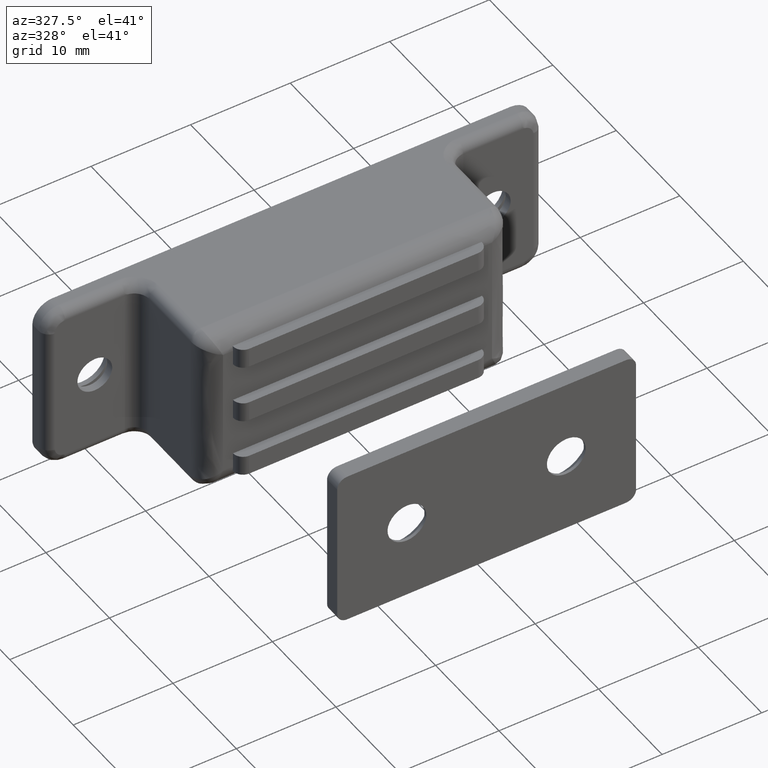
[diagram: clean part render]
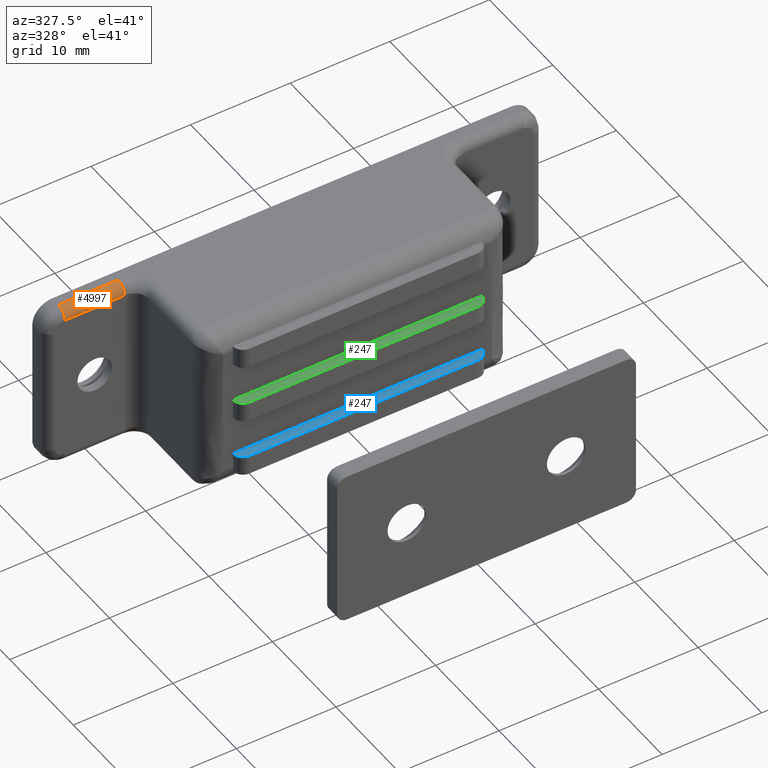
[diagram: same view with three faces highlighted in distinct colors, each labeled with its STEP entity id]
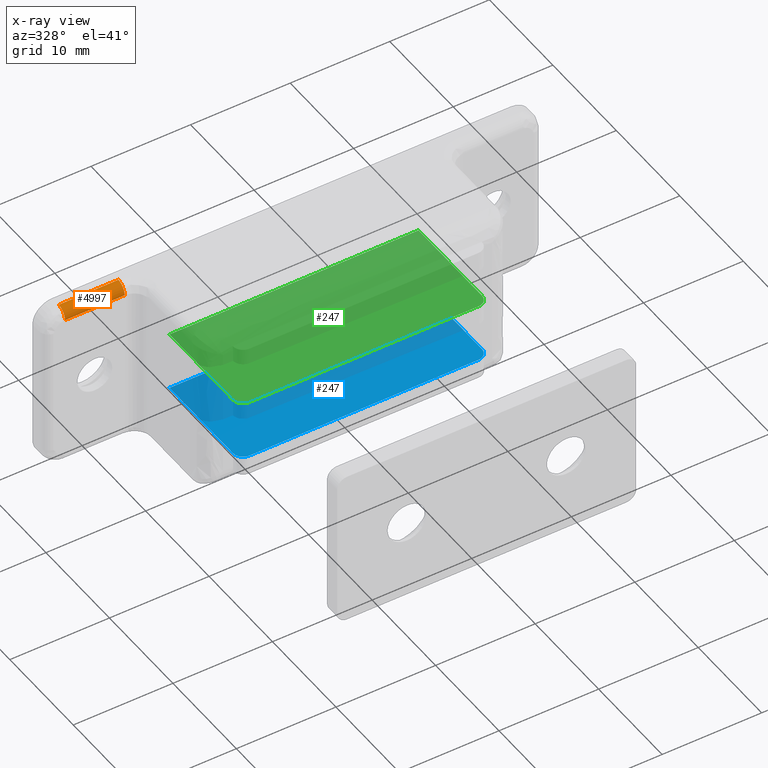
[diagram: x-ray of the same camera — body ghosted, the three highlighted faces saturated]
A machine part, auxiliary view with three faces highlighted in distinct colors.
The next image is the same camera in x-ray (body ghosted, the three faces saturated) — at least one of them is partly hidden behind the body in this view.
Their STEP definitions:

[orange] entity #4997 — the highlighted face is a freeform B-spline surface patch.
#4906=CARTESIAN_POINT('',(-17.000004000000001,-1.0,8.500000000000000));
#4907=VERTEX_POINT('',#4906);
#4908=CARTESIAN_POINT('',(-17.000004000000001,-2.0,7.500000000000000));
#4909=VERTEX_POINT('',#4908);
#4910=CARTESIAN_POINT('',(-17.000004000000001,-1.0,8.500000000000000));
#4911=CARTESIAN_POINT('',(-17.000003999999993,-2.000000000000000,8.500000000000002));
#4912=CARTESIAN_POINT('',(-17.000004000000001,-2.0,7.500000000000000));
#4920=(BOUNDED_CURVE()B_SPLINE_CURVE(2,(#4910,#4911,#4912),.UNSPECIFIED.,.F.,.U.)CURVE()GEOMETRIC_REPRESENTATION_ITEM()QUASI_UNIFORM_CURVE()RATIONAL_B_SPLINE_CURVE((1.0,0.707106781186548,1.0))REPRESENTATION_ITEM(''));
#4921=EDGE_CURVE('',#4907,#4909,#4920,.T.);
#4953=CARTESIAN_POINT('',(-16.850003999999998,-0.973823051692127,8.499657324975557));
#4954=CARTESIAN_POINT('',(-23.153754000000010,-0.973823051692127,8.499657324975557));
#4955=CARTESIAN_POINT('',(-16.850004000000002,-2.074984800554719,8.528492260166260));
#4956=CARTESIAN_POINT('',(-23.153753999999999,-2.074984800554719,8.528492260166260));
#4957=CARTESIAN_POINT('',(-16.850004000000002,-1.997524479380809,7.429679924374018));
#4958=CARTESIAN_POINT('',(-23.153754000000010,-1.997524479380809,7.429679924374018));
#4966=(BOUNDED_SURFACE()B_SPLINE_SURFACE(1,2,((#4953,#4955,#4957),(#4954,#4956,#4958)),.UNSPECIFIED.,.F.,.F.,.U.)B_SPLINE_SURFACE_WITH_KNOTS((2,2),(3,3),(0.0,6.303750000000008),(0.0,0.994518632334191),.UNSPECIFIED.)GEOMETRIC_REPRESENTATION_ITEM()RATIONAL_B_SPLINE_SURFACE(((1.0,0.670944223154768,0.996392648609106),(1.0,0.670944223154768,0.996392648609106)))REPRESENTATION_ITEM('')SURFACE());
#4967=CARTESIAN_POINT('',(-23.000004000000001,-1.0,8.500000000000000));
#4968=VERTEX_POINT('',#4967);
#4969=CARTESIAN_POINT('',(-23.000004000000001,-2.0,7.500000000000000));
#4970=VERTEX_POINT('',#4969);
#4971=CARTESIAN_POINT('',(-23.000004000000001,-1.0,8.500000000000000));
#4972=CARTESIAN_POINT('',(-23.000004000000004,-2.000000000000000,8.500000000000002));
#4973=CARTESIAN_POINT('',(-23.000004000000001,-2.0,7.500000000000000));
#4981=(BOUNDED_CURVE()B_SPLINE_CURVE(2,(#4971,#4972,#4973),.UNSPECIFIED.,.F.,.U.)CURVE()GEOMETRIC_REPRESENTATION_ITEM()QUASI_UNIFORM_CURVE()RATIONAL_B_SPLINE_CURVE((1.0,0.707106781186548,1.0))REPRESENTATION_ITEM(''));
#4982=EDGE_CURVE('',#4968,#4970,#4981,.T.);
#4983=ORIENTED_EDGE('',*,*,#4982,.T.);
#4984=CARTESIAN_POINT('',(-17.000004000000001,-2.0,7.500000000000000));
#4985=CARTESIAN_POINT('',(-23.000004000000001,-2.0,7.500000000000000));
#4986=QUASI_UNIFORM_CURVE('',1,(#4984,#4985),.UNSPECIFIED.,.F.,.U.);
#4987=EDGE_CURVE('',#4909,#4970,#4986,.T.);
#4988=ORIENTED_EDGE('',*,*,#4987,.F.);
#4989=ORIENTED_EDGE('',*,*,#4921,.F.);
#4990=CARTESIAN_POINT('',(-23.000004000000001,-1.0,8.500000000000000));
#4991=CARTESIAN_POINT('',(-17.000004000000001,-1.0,8.500000000000000));
#4992=QUASI_UNIFORM_CURVE('',1,(#4990,#4991),.UNSPECIFIED.,.F.,.U.);
#4993=EDGE_CURVE('',#4968,#4907,#4992,.T.);
#4994=ORIENTED_EDGE('',*,*,#4993,.F.);
#4995=EDGE_LOOP('',(#4983,#4988,#4989,#4994));
#4996=FACE_OUTER_BOUND('',#4995,.T.);
#4997=ADVANCED_FACE('',(#4996),#4966,.T.);

[blue] entity #247 — the highlighted face is a freeform B-spline surface patch.
#77=CARTESIAN_POINT('',(-11.500003999999940,-13.0,7.0));
#78=VERTEX_POINT('',#77);
#84=CARTESIAN_POINT('',(-12.500003999999940,-12.0,7.0));
#85=VERTEX_POINT('',#84);
#86=CARTESIAN_POINT('',(-12.500003999999940,-12.0,7.0));
#87=CARTESIAN_POINT('',(-12.500003999999995,-12.414213562373115,7.000000000000001));
#88=CARTESIAN_POINT('',(-12.207110781186531,-12.707106781186569,7.0));
#89=CARTESIAN_POINT('',(-11.914217562373082,-13.000000000000005,7.000000000000001));
#90=CARTESIAN_POINT('',(-11.500003999999940,-13.0,7.0));
#98=(BOUNDED_CURVE()B_SPLINE_CURVE(2,(#86,#87,#88,#89,#90),.UNSPECIFIED.,.F.,.U.)B_SPLINE_CURVE_WITH_KNOTS((3,2,3),(0.0,0.500000000000000,1.0),.UNSPECIFIED.)CURVE()GEOMETRIC_REPRESENTATION_ITEM()RATIONAL_B_SPLINE_CURVE((1.0,0.923879532511281,1.0,0.923879532511281,1.0))REPRESENTATION_ITEM(''));
#99=EDGE_CURVE('',#85,#78,#98,.T.);
#140=CARTESIAN_POINT('',(12.500000000000000,-12.0,7.0));
#141=VERTEX_POINT('',#140);
#147=CARTESIAN_POINT('',(11.500000000000000,-13.0,7.0));
#148=VERTEX_POINT('',#147);
#149=CARTESIAN_POINT('',(11.500000000000000,-13.0,7.0));
#150=CARTESIAN_POINT('',(12.500000000000000,-13.000000000000004,6.999999999999999));
#151=CARTESIAN_POINT('',(12.500000000000000,-12.0,7.0));
#159=(BOUNDED_CURVE()B_SPLINE_CURVE(2,(#149,#150,#151),.UNSPECIFIED.,.F.,.U.)CURVE()GEOMETRIC_REPRESENTATION_ITEM()QUASI_UNIFORM_CURVE()RATIONAL_B_SPLINE_CURVE((1.0,0.707106781186548,1.0))REPRESENTATION_ITEM(''));
#160=EDGE_CURVE('',#148,#141,#159,.T.);
#175=CARTESIAN_POINT('',(12.500000000000000,-2.0,7.0));
#176=VERTEX_POINT('',#175);
#177=CARTESIAN_POINT('',(12.500000000000000,-12.0,7.0));
#178=CARTESIAN_POINT('',(12.500000000000000,-2.0,7.0));
#179=QUASI_UNIFORM_CURVE('',1,(#177,#178),.UNSPECIFIED.,.F.,.U.);
#180=EDGE_CURVE('',#141,#176,#179,.T.);
#211=CARTESIAN_POINT('',(-12.500003999999940,-2.0,7.0));
#212=VERTEX_POINT('',#211);
#213=CARTESIAN_POINT('',(-12.500003999999940,-12.0,7.0));
#214=CARTESIAN_POINT('',(-12.500003999999940,-2.0,7.0));
#215=QUASI_UNIFORM_CURVE('',1,(#213,#214),.UNSPECIFIED.,.F.,.U.);
#216=EDGE_CURVE('',#85,#212,#215,.T.);
#226=CARTESIAN_POINT('',(13.748750151345140,-13.549449978679871,7.0));
#227=CARTESIAN_POINT('',(-13.748754821897441,-13.549449978679871,7.0));
#228=CARTESIAN_POINT('',(13.748750151345140,-1.450549726277144,7.0));
#229=CARTESIAN_POINT('',(-13.748754821897441,-1.450549726277144,7.0));
#230=B_SPLINE_SURFACE_WITH_KNOTS('',1,1,((#226,#228),(#227,#229)),.UNSPECIFIED.,.F.,.F.,.U.,(2,2),(2,2),(0.0,27.497504973242581),(0.0,12.098900252402720),.UNSPECIFIED.);
#231=CARTESIAN_POINT('',(-11.500003999999940,-13.0,7.0));
#232=CARTESIAN_POINT('',(11.500000000000000,-13.0,7.0));
#233=QUASI_UNIFORM_CURVE('',1,(#231,#232),.UNSPECIFIED.,.F.,.U.);
#234=EDGE_CURVE('',#78,#148,#233,.T.);
#235=ORIENTED_EDGE('',*,*,#234,.T.);
#236=ORIENTED_EDGE('',*,*,#160,.T.);
#237=ORIENTED_EDGE('',*,*,#180,.T.);
#238=CARTESIAN_POINT('',(-12.500003999999940,-2.0,7.0));
#239=CARTESIAN_POINT('',(12.500000000000000,-2.0,7.0));
#240=QUASI_UNIFORM_CURVE('',1,(#238,#239),.UNSPECIFIED.,.F.,.U.);
#241=EDGE_CURVE('',#212,#176,#240,.T.);
#242=ORIENTED_EDGE('',*,*,#241,.F.);
#243=ORIENTED_EDGE('',*,*,#216,.F.);
#244=ORIENTED_EDGE('',*,*,#99,.T.);
#245=EDGE_LOOP('',(#235,#236,#237,#242,#243,#244));
#246=FACE_OUTER_BOUND('',#245,.T.);
#247=ADVANCED_FACE('',(#246),#230,.F.);

[green] entity #247 — the highlighted face is a freeform B-spline surface patch.
#77=CARTESIAN_POINT('',(-11.500003999999940,-13.0,7.0));
#78=VERTEX_POINT('',#77);
#84=CARTESIAN_POINT('',(-12.500003999999940,-12.0,7.0));
#85=VERTEX_POINT('',#84);
#86=CARTESIAN_POINT('',(-12.500003999999940,-12.0,7.0));
#87=CARTESIAN_POINT('',(-12.500003999999995,-12.414213562373115,7.000000000000001));
#88=CARTESIAN_POINT('',(-12.207110781186531,-12.707106781186569,7.0));
#89=CARTESIAN_POINT('',(-11.914217562373082,-13.000000000000005,7.000000000000001));
#90=CARTESIAN_POINT('',(-11.500003999999940,-13.0,7.0));
#98=(BOUNDED_CURVE()B_SPLINE_CURVE(2,(#86,#87,#88,#89,#90),.UNSPECIFIED.,.F.,.U.)B_SPLINE_CURVE_WITH_KNOTS((3,2,3),(0.0,0.500000000000000,1.0),.UNSPECIFIED.)CURVE()GEOMETRIC_REPRESENTATION_ITEM()RATIONAL_B_SPLINE_CURVE((1.0,0.923879532511281,1.0,0.923879532511281,1.0))REPRESENTATION_ITEM(''));
#99=EDGE_CURVE('',#85,#78,#98,.T.);
#140=CARTESIAN_POINT('',(12.500000000000000,-12.0,7.0));
#141=VERTEX_POINT('',#140);
#147=CARTESIAN_POINT('',(11.500000000000000,-13.0,7.0));
#148=VERTEX_POINT('',#147);
#149=CARTESIAN_POINT('',(11.500000000000000,-13.0,7.0));
#150=CARTESIAN_POINT('',(12.500000000000000,-13.000000000000004,6.999999999999999));
#151=CARTESIAN_POINT('',(12.500000000000000,-12.0,7.0));
#159=(BOUNDED_CURVE()B_SPLINE_CURVE(2,(#149,#150,#151),.UNSPECIFIED.,.F.,.U.)CURVE()GEOMETRIC_REPRESENTATION_ITEM()QUASI_UNIFORM_CURVE()RATIONAL_B_SPLINE_CURVE((1.0,0.707106781186548,1.0))REPRESENTATION_ITEM(''));
#160=EDGE_CURVE('',#148,#141,#159,.T.);
#175=CARTESIAN_POINT('',(12.500000000000000,-2.0,7.0));
#176=VERTEX_POINT('',#175);
#177=CARTESIAN_POINT('',(12.500000000000000,-12.0,7.0));
#178=CARTESIAN_POINT('',(12.500000000000000,-2.0,7.0));
#179=QUASI_UNIFORM_CURVE('',1,(#177,#178),.UNSPECIFIED.,.F.,.U.);
#180=EDGE_CURVE('',#141,#176,#179,.T.);
#211=CARTESIAN_POINT('',(-12.500003999999940,-2.0,7.0));
#212=VERTEX_POINT('',#211);
#213=CARTESIAN_POINT('',(-12.500003999999940,-12.0,7.0));
#214=CARTESIAN_POINT('',(-12.500003999999940,-2.0,7.0));
#215=QUASI_UNIFORM_CURVE('',1,(#213,#214),.UNSPECIFIED.,.F.,.U.);
#216=EDGE_CURVE('',#85,#212,#215,.T.);
#226=CARTESIAN_POINT('',(13.748750151345140,-13.549449978679871,7.0));
#227=CARTESIAN_POINT('',(-13.748754821897441,-13.549449978679871,7.0));
#228=CARTESIAN_POINT('',(13.748750151345140,-1.450549726277144,7.0));
#229=CARTESIAN_POINT('',(-13.748754821897441,-1.450549726277144,7.0));
#230=B_SPLINE_SURFACE_WITH_KNOTS('',1,1,((#226,#228),(#227,#229)),.UNSPECIFIED.,.F.,.F.,.U.,(2,2),(2,2),(0.0,27.497504973242581),(0.0,12.098900252402720),.UNSPECIFIED.);
#231=CARTESIAN_POINT('',(-11.500003999999940,-13.0,7.0));
#232=CARTESIAN_POINT('',(11.500000000000000,-13.0,7.0));
#233=QUASI_UNIFORM_CURVE('',1,(#231,#232),.UNSPECIFIED.,.F.,.U.);
#234=EDGE_CURVE('',#78,#148,#233,.T.);
#235=ORIENTED_EDGE('',*,*,#234,.T.);
#236=ORIENTED_EDGE('',*,*,#160,.T.);
#237=ORIENTED_EDGE('',*,*,#180,.T.);
#238=CARTESIAN_POINT('',(-12.500003999999940,-2.0,7.0));
#239=CARTESIAN_POINT('',(12.500000000000000,-2.0,7.0));
#240=QUASI_UNIFORM_CURVE('',1,(#238,#239),.UNSPECIFIED.,.F.,.U.);
#241=EDGE_CURVE('',#212,#176,#240,.T.);
#242=ORIENTED_EDGE('',*,*,#241,.F.);
#243=ORIENTED_EDGE('',*,*,#216,.F.);
#244=ORIENTED_EDGE('',*,*,#99,.T.);
#245=EDGE_LOOP('',(#235,#236,#237,#242,#243,#244));
#246=FACE_OUTER_BOUND('',#245,.T.);
#247=ADVANCED_FACE('',(#246),#230,.F.);